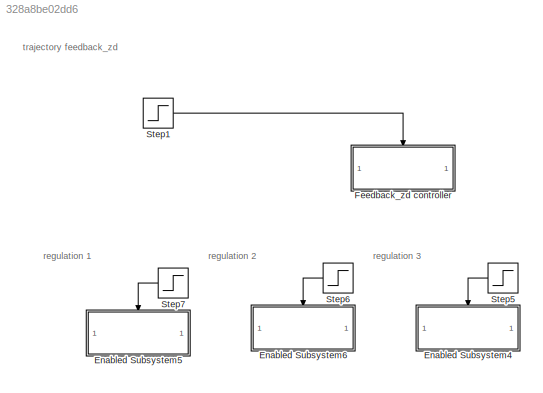
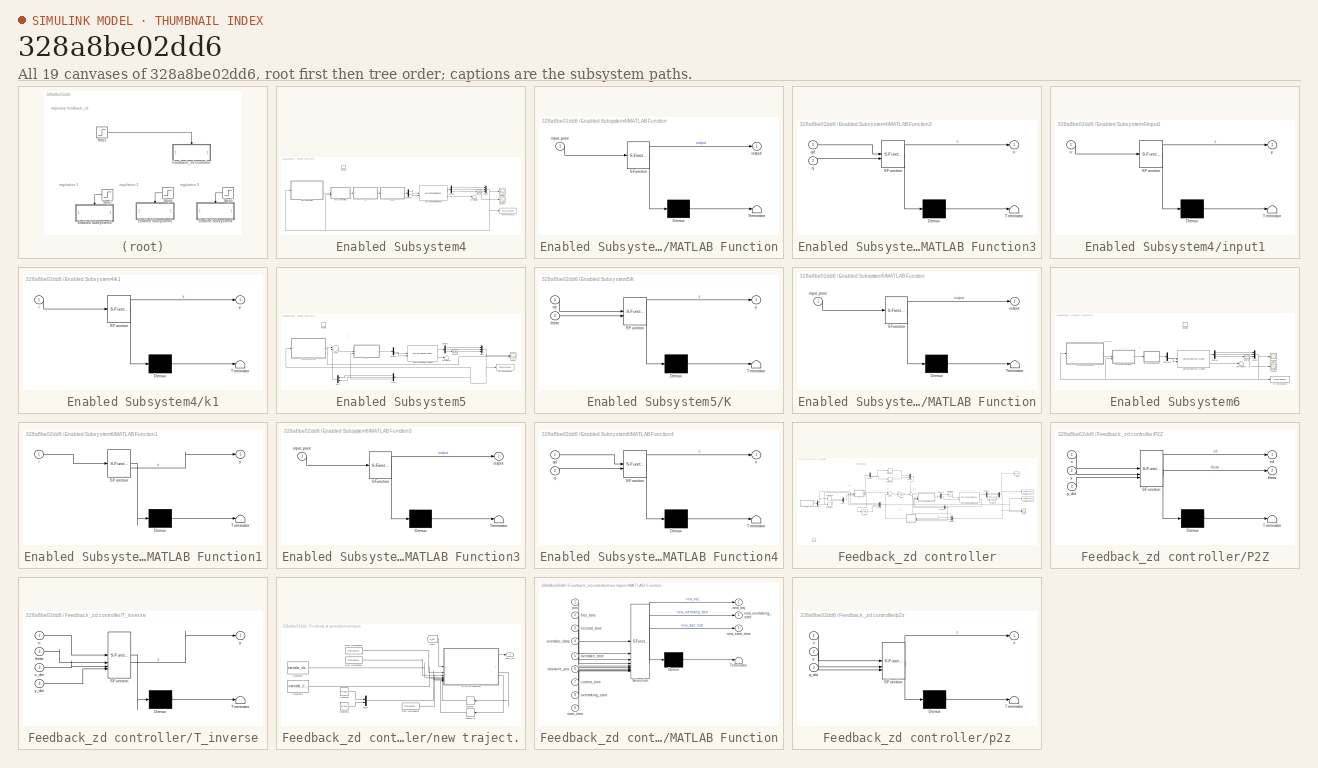
[diagram: thumbnail index - all 19 canvases of the model, root first then tree order]
MODEL slx_328a8be02dd6
KIND model
CONFIG AbsTol = auto
CONFIG EnableMultiTasking = off
CONFIG FixedStep = 0.001
CONFIG MaxStep = auto
CONFIG MinStep = auto
CONFIG RelTol = 10-8
CONFIG SampleTimeConstraint = Unconstrained
CONFIG SolverName = FixedStepAuto
CONFIG StartTime = 0.0
CONFIG StopTime = 15
WORKSPACE source: mxarray member
WORKSPACE kd1: Simulink.Parameter (value not decoded)
WORKSPACE kd2: Simulink.Parameter (value not decoded)
WORKSPACE kp1: Simulink.Parameter (value not decoded)
WORKSPACE kp2: Simulink.Parameter (value not decoded)
BLOCK [SubSystem] Enabled Subsystem4
  TreatAsAtomicUnit = on
BLOCK [Demux] Enabled Subsystem4/Demux
  Outputs = 3
BLOCK [Demux] Enabled Subsystem4/Demux5
  Outputs = 2
BLOCK [EnablePort] Enabled Subsystem4/Enable
BLOCK [SubSystem] Enabled Subsystem4/MATLAB Function
  ErrorFcn = Stateflow.Translate.translate
  PermitHierarchicalResolution = ExplicitOnly
  SFBlockType = MATLAB Function
  TreatAsAtomicUnit = on
BLOCK [Demux] Enabled Subsystem4/MATLAB Function/ Demux 
  Outputs = 1
BLOCK [S-Function] Enabled Subsystem4/MATLAB Function/ SFunction 
  EnableBusSupport = on
  FunctionName = sf_sfun
  PortCounts = [1 2]
  SFcnIsStateOwnerBlock = off
  SFunctionDeploymentMode = off
  Tag = Stateflow S-Function 4
BLOCK [Terminator] Enabled Subsystem4/MATLAB Function/ Terminator 
BLOCK [Inport] Enabled Subsystem4/MATLAB Function/input_pose
BLOCK [Outport] Enabled Subsystem4/MATLAB Function/output
BLOCK [SubSystem] Enabled Subsystem4/MATLAB Function3
  ErrorFcn = Stateflow.Translate.translate
  PermitHierarchicalResolution = ExplicitOnly
  SFBlockType = MATLAB Function
  TreatAsAtomicUnit = on
BLOCK [Demux] Enabled Subsystem4/MATLAB Function3/ Demux 
  Outputs = 1
BLOCK [S-Function] Enabled Subsystem4/MATLAB Function3/ SFunction 
  EnableBusSupport = on
  FunctionName = sf_sfun
  PortCounts = [2 2]
  SFcnIsStateOwnerBlock = off
  SFunctionDeploymentMode = off
  Tag = Stateflow S-Function 6
BLOCK [Terminator] Enabled Subsystem4/MATLAB Function3/ Terminator 
BLOCK [Outport] Enabled Subsystem4/MATLAB Function3/o
BLOCK [Inport] Enabled Subsystem4/MATLAB Function3/q
  Port = 2
BLOCK [Inport] Enabled Subsystem4/MATLAB Function3/qd
BLOCK [Mux] Enabled Subsystem4/Mux2
  DisplayOption = bar
  Inputs = 3
BLOCK [Scope] Enabled Subsystem4/Scope2
  Floating = off
  NumInputPorts = 1
  ScopeSpecificationString = Simulink.scopes.TimeScopeBlockCfg('CurrentConfiguration', extmgr.ConfigurationSet(extmgr.Configuration('Core','General UI',true),extmgr.Configuration('Core','Source UI',true),extmgr.Configuration('Sources','WiredSimulink',true,'DataLoggingVariableName','ScopeData4'),extmgr.Configuration('Visuals','Time Domain',true,'SerializedDisplays',{struct('MinYLimReal','-0.51276','MaxYLimReal','1.89269','YLab...<+1417ch>
BLOCK [Scope] Enabled Subsystem4/Scope4
  Floating = off
  NumInputPorts = 1
  ScopeSpecificationString = Simulink.scopes.TimeScopeBlockCfg('CurrentConfiguration', extmgr.ConfigurationSet(extmgr.Configuration('Core','General UI',true),extmgr.Configuration('Core','Source UI',true),extmgr.Configuration('Sources','WiredSimulink',true,'DataLoggingVariableName','ScopeData5'),extmgr.Configuration('Visuals','Time Domain',true,'SerializedDisplays',{struct('MinYLimReal','-18.75885','MaxYLimReal','168.82963','Y...<+1472ch>
BLOCK [Terminator] Enabled Subsystem4/Terminator
BLOCK [ToWorkspace] Enabled Subsystem4/To Workspace1
  FixptAsFi = on
  MaxDataPoints = inf
  SampleTime = 0.004
  SaveFormat = Structure With Time
  VariableName = uni_state1
BLOCK [Reference] Enabled Subsystem4/Unicycle Kinematic Model1  REF=robotmobilelib/Unicycle Kinematic Model
  SourceBlock = robotmobilelib/Unicycle Kinematic Model
  SourceType = Unicycle Kinematic Model
BLOCK [Reference] Enabled Subsystem4/Unwrap  REF=dspsigops/Unwrap
  SourceBlock = dspsigops/Unwrap
  SourceType = Unwrap
  UserDataPersistent = on
BLOCK [SubSystem] Enabled Subsystem4/input1
  ErrorFcn = Stateflow.Translate.translate
  PermitHierarchicalResolution = ExplicitOnly
  SFBlockType = MATLAB Function
  TreatAsAtomicUnit = on
BLOCK [Demux] Enabled Subsystem4/input1/ Demux 
  Outputs = 1
BLOCK [S-Function] Enabled Subsystem4/input1/ SFunction 
  EnableBusSupport = on
  FunctionName = sf_sfun
  PortCounts = [1 2]
  SFcnIsStateOwnerBlock = off
  SFunctionDeploymentMode = off
  Tag = Stateflow S-Function 7
BLOCK [Terminator] Enabled Subsystem4/input1/ Terminator 
BLOCK [Inport] Enabled Subsystem4/input1/u
BLOCK [Outport] Enabled Subsystem4/input1/y
BLOCK [SubSystem] Enabled Subsystem4/k1
  ErrorFcn = Stateflow.Translate.translate
  PermitHierarchicalResolution = ExplicitOnly
  SFBlockType = MATLAB Function
  TreatAsAtomicUnit = on
BLOCK [Demux] Enabled Subsystem4/k1/ Demux 
  Outputs = 1
BLOCK [S-Function] Enabled Subsystem4/k1/ SFunction 
  EnableBusSupport = on
  FunctionName = sf_sfun
  PortCounts = [1 2]
  SFcnIsStateOwnerBlock = off
  SFunctionDeploymentMode = off
  Tag = Stateflow S-Function 16
BLOCK [Terminator] Enabled Subsystem4/k1/ Terminator 
BLOCK [Inport] Enabled Subsystem4/k1/i
BLOCK [Outport] Enabled Subsystem4/k1/y
BLOCK [SubSystem] Enabled Subsystem5
  Commented = on
  TreatAsAtomicUnit = on
BLOCK [Demux] Enabled Subsystem5/Demux
  NameLocation = top
  Outputs = 3
BLOCK [Demux] Enabled Subsystem5/Demux2
  Outputs = 2
BLOCK [Demux] Enabled Subsystem5/Demux4
  Outputs = 3
BLOCK [EnablePort] Enabled Subsystem5/Enable
BLOCK [SubSystem] Enabled Subsystem5/K
  ErrorFcn = Stateflow.Translate.translate
  PermitHierarchicalResolution = ExplicitOnly
  SFBlockType = MATLAB Function
  TreatAsAtomicUnit = on
BLOCK [Demux] Enabled Subsystem5/K/ Demux 
  Outputs = 1
BLOCK [S-Function] Enabled Subsystem5/K/ SFunction 
  EnableBusSupport = on
  FunctionName = sf_sfun
  PortCounts = [2 2]
  SFcnIsStateOwnerBlock = off
  SFunctionDeploymentMode = off
  Tag = Stateflow S-Function 19
BLOCK [Terminator] Enabled Subsystem5/K/ Terminator 
BLOCK [Inport] Enabled Subsystem5/K/ep
BLOCK [Inport] Enabled Subsystem5/K/theta
  Port = 2
BLOCK [Outport] Enabled Subsystem5/K/y
BLOCK [SubSystem] Enabled Subsystem5/MATLAB Function
  ErrorFcn = Stateflow.Translate.translate
  PermitHierarchicalResolution = ExplicitOnly
  SFBlockType = MATLAB Function
  TreatAsAtomicUnit = on
BLOCK [Demux] Enabled Subsystem5/MATLAB Function/ Demux 
  Outputs = 1
BLOCK [S-Function] Enabled Subsystem5/MATLAB Function/ SFunction 
  EnableBusSupport = on
  FunctionName = sf_sfun
  PortCounts = [1 2]
  SFcnIsStateOwnerBlock = off
  SFunctionDeploymentMode = off
  Tag = Stateflow S-Function 23
BLOCK [Terminator] Enabled Subsystem5/MATLAB Function/ Terminator 
BLOCK [Inport] Enabled Subsystem5/MATLAB Function/input_pose
BLOCK [Outport] Enabled Subsystem5/MATLAB Function/output
BLOCK [Mux] Enabled Subsystem5/Mux
  DisplayOption = bar
  Inputs = 3
BLOCK [Mux] Enabled Subsystem5/Mux1
  DisplayOption = bar
  Inputs = 2
  NameLocation = top
BLOCK [Scope] Enabled Subsystem5/Scope
  Floating = off
  NumInputPorts = 2
  ScopeSpecificationString = Simulink.scopes.TimeScopeBlockCfg('CurrentConfiguration', extmgr.ConfigurationSet(extmgr.Configuration('Core','General UI',true),extmgr.Configuration('Core','Source UI',true),extmgr.Configuration('Sources','WiredSimulink',true,'DataLoggingVariableName','ScopeData1'),extmgr.Configuration('Visuals','Time Domain',true,'SerializedDisplays',{struct('MinYLimReal','-35.55536','MaxYLimReal','319.99823','Y...<+1510ch>
BLOCK [Sum] Enabled Subsystem5/Sum2
  Inputs = ||+-|
BLOCK [Terminator] Enabled Subsystem5/Terminator
BLOCK [ToWorkspace] Enabled Subsystem5/To Workspace1
  FixptAsFi = on
  MaxDataPoints = inf
  SampleTime = 0.001
  SaveFormat = Structure With Time
  VariableName = uni_state1
BLOCK [Reference] Enabled Subsystem5/Unicycle Kinematic Model1  REF=robotmobilelib/Unicycle Kinematic Model
  SourceBlock = robotmobilelib/Unicycle Kinematic Model
  SourceType = Unicycle Kinematic Model
BLOCK [Reference] Enabled Subsystem5/Unwrap  REF=dspsigops/Unwrap
  SourceBlock = dspsigops/Unwrap
  SourceType = Unwrap
  UserDataPersistent = on
BLOCK [SubSystem] Enabled Subsystem6
  Commented = on
  TreatAsAtomicUnit = on
BLOCK [Demux] Enabled Subsystem6/Demux
  Outputs = 3
BLOCK [Demux] Enabled Subsystem6/Demux5
  Outputs = 2
BLOCK [EnablePort] Enabled Subsystem6/Enable
BLOCK [SubSystem] Enabled Subsystem6/MATLAB Function1
  ErrorFcn = Stateflow.Translate.translate
  PermitHierarchicalResolution = ExplicitOnly
  SFBlockType = MATLAB Function
  TreatAsAtomicUnit = on
BLOCK [Demux] Enabled Subsystem6/MATLAB Function1/ Demux 
  Outputs = 1
BLOCK [S-Function] Enabled Subsystem6/MATLAB Function1/ SFunction 
  EnableBusSupport = on
  FunctionName = sf_sfun
  PortCounts = [1 2]
  SFcnIsStateOwnerBlock = off
  SFunctionDeploymentMode = off
  Tag = Stateflow S-Function 24
BLOCK [Terminator] Enabled Subsystem6/MATLAB Function1/ Terminator 
BLOCK [Inport] Enabled Subsystem6/MATLAB Function1/i
BLOCK [Outport] Enabled Subsystem6/MATLAB Function1/y
BLOCK [SubSystem] Enabled Subsystem6/MATLAB Function3
  ErrorFcn = Stateflow.Translate.translate
  PermitHierarchicalResolution = ExplicitOnly
  SFBlockType = MATLAB Function
  TreatAsAtomicUnit = on
BLOCK [Demux] Enabled Subsystem6/MATLAB Function3/ Demux 
  Outputs = 1
BLOCK [S-Function] Enabled Subsystem6/MATLAB Function3/ SFunction 
  EnableBusSupport = on
  FunctionName = sf_sfun
  PortCounts = [1 2]
  SFcnIsStateOwnerBlock = off
  SFunctionDeploymentMode = off
  Tag = Stateflow S-Function 25
BLOCK [Terminator] Enabled Subsystem6/MATLAB Function3/ Terminator 
BLOCK [Inport] Enabled Subsystem6/MATLAB Function3/input_pose
BLOCK [Outport] Enabled Subsystem6/MATLAB Function3/output
BLOCK [SubSystem] Enabled Subsystem6/MATLAB Function4
  ErrorFcn = Stateflow.Translate.translate
  PermitHierarchicalResolution = ExplicitOnly
  SFBlockType = MATLAB Function
  TreatAsAtomicUnit = on
BLOCK [Demux] Enabled Subsystem6/MATLAB Function4/ Demux 
  Outputs = 1
BLOCK [S-Function] Enabled Subsystem6/MATLAB Function4/ SFunction 
  EnableBusSupport = on
  FunctionName = sf_sfun
  PortCounts = [2 2]
  SFcnIsStateOwnerBlock = off
  SFunctionDeploymentMode = off
  Tag = Stateflow S-Function 26
BLOCK [Terminator] Enabled Subsystem6/MATLAB Function4/ Terminator 
BLOCK [Outport] Enabled Subsystem6/MATLAB Function4/o
BLOCK [Inport] Enabled Subsystem6/MATLAB Function4/q
  Port = 2
BLOCK [Inport] Enabled Subsystem6/MATLAB Function4/qd
BLOCK [Mux] Enabled Subsystem6/Mux2
  DisplayOption = bar
  Inputs = 3
BLOCK [Scope] Enabled Subsystem6/Scope1
  Floating = off
  NumInputPorts = 1
  ScopeSpecificationString = Simulink.scopes.TimeScopeBlockCfg('CurrentConfiguration', extmgr.ConfigurationSet(extmgr.Configuration('Core','General UI',true),extmgr.Configuration('Core','Source UI',true),extmgr.Configuration('Sources','WiredSimulink',true,'DataLoggingVariableName','ScopeData2'),extmgr.Configuration('Visuals','Time Domain',true,'SerializedDisplays',{struct('MinYLimReal','-0.50543','MaxYLimReal','2.27484','YLab...<+1417ch>
BLOCK [Scope] Enabled Subsystem6/Scope4
  Floating = off
  NumInputPorts = 1
  ScopeSpecificationString = Simulink.scopes.TimeScopeBlockCfg('CurrentConfiguration', extmgr.ConfigurationSet(extmgr.Configuration('Core','General UI',true),extmgr.Configuration('Core','Source UI',true),extmgr.Configuration('Sources','WiredSimulink',true,'DataLoggingVariableName','ScopeData3'),extmgr.Configuration('Visuals','Time Domain',true,'SerializedDisplays',{struct('MinYLimReal','-35.59535','MaxYLimReal','315.06615','Y...<+1472ch>
BLOCK [Terminator] Enabled Subsystem6/Terminator
BLOCK [ToWorkspace] Enabled Subsystem6/To Workspace2
  FixptAsFi = on
  MaxDataPoints = inf
  SampleTime = 0.001
  SaveFormat = Structure With Time
  VariableName = uni_state1
BLOCK [Reference] Enabled Subsystem6/Unicycle Kinematic Model2  REF=robotmobilelib/Unicycle Kinematic Model
  SourceBlock = robotmobilelib/Unicycle Kinematic Model
  SourceType = Unicycle Kinematic Model
BLOCK [Reference] Enabled Subsystem6/Unwrap  REF=dspsigops/Unwrap
  SourceBlock = dspsigops/Unwrap
  SourceType = Unwrap
  UserDataPersistent = on
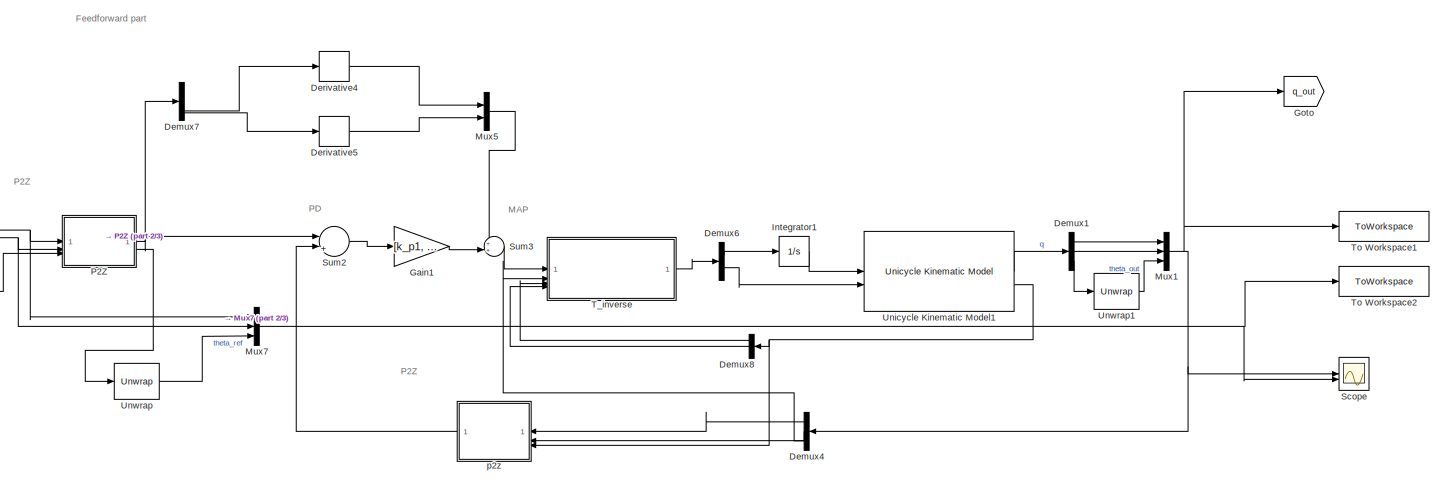
[diagram: Feedback_zd controller - part 1/3, most of the canvas]
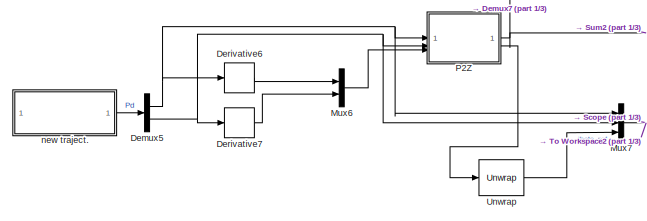
[diagram: Feedback_zd controller - part 2/3, middle left region]
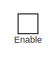
[diagram: Feedback_zd controller - part 3/3, bottom left region]
BLOCK [SubSystem] Feedback_zd controller
  TreatAsAtomicUnit = on
BLOCK [Demux] Feedback_zd controller/Demux1
  Outputs = 3
BLOCK [Demux] Feedback_zd controller/Demux4
  NameLocation = top
  Outputs = 3
BLOCK [Demux] Feedback_zd controller/Demux5
  Outputs = 2
BLOCK [Demux] Feedback_zd controller/Demux6
  Outputs = 2
BLOCK [Demux] Feedback_zd controller/Demux7
BLOCK [Demux] Feedback_zd controller/Demux8
  NameLocation = top
  Outputs = 3
BLOCK [Derivative] Feedback_zd controller/Derivative4
BLOCK [Derivative] Feedback_zd controller/Derivative5
BLOCK [Derivative] Feedback_zd controller/Derivative6
BLOCK [Derivative] Feedback_zd controller/Derivative7
BLOCK [EnablePort] Feedback_zd controller/Enable
BLOCK [Gain] Feedback_zd controller/Gain1
  Gain = [k_p1, 0, k_d1, 0; 0, k_p2, 0, k_d2]
  Multiplication = Matrix(K*u) (u vector)
BLOCK [Goto] Feedback_zd controller/Goto
  GotoTag = q_out
  TagVisibility = global
BLOCK [Integrator] Feedback_zd controller/Integrator1
BLOCK [Mux] Feedback_zd controller/Mux1
  DisplayOption = bar
  Inputs = 3
BLOCK [Mux] Feedback_zd controller/Mux5
  DisplayOption = bar
  Inputs = 2
BLOCK [Mux] Feedback_zd controller/Mux6
  DisplayOption = bar
  Inputs = 2
BLOCK [Mux] Feedback_zd controller/Mux7
  DisplayOption = bar
  Inputs = 3
BLOCK [SubSystem] Feedback_zd controller/P2Z
  ErrorFcn = Stateflow.Translate.translate
  PermitHierarchicalResolution = ExplicitOnly
  SFBlockType = MATLAB Function
  TreatAsAtomicUnit = on
BLOCK [Demux] Feedback_zd controller/P2Z/ Demux 
  Outputs = 1
BLOCK [S-Function] Feedback_zd controller/P2Z/ SFunction 
  EnableBusSupport = on
  FunctionName = sf_sfun
  PortCounts = [3 3]
  SFcnIsStateOwnerBlock = off
  SFunctionDeploymentMode = off
  Tag = Stateflow S-Function 22
BLOCK [Terminator] Feedback_zd controller/P2Z/ Terminator 
BLOCK [Inport] Feedback_zd controller/P2Z/p_dot
  Port = 3
BLOCK [Outport] Feedback_zd controller/P2Z/theta
  Port = 2
BLOCK [Inport] Feedback_zd controller/P2Z/x
BLOCK [Inport] Feedback_zd controller/P2Z/y
  Port = 2
BLOCK [Outport] Feedback_zd controller/P2Z/zd
BLOCK [Scope] Feedback_zd controller/Scope
  Floating = off
  NumInputPorts = 2
  ScopeSpecificationString = Simulink.scopes.TimeScopeBlockCfg('CurrentConfiguration', extmgr.ConfigurationSet(extmgr.Configuration('Core','General UI',true),extmgr.Configuration('Core','Source UI',true),extmgr.Configuration('Sources','WiredSimulink',true,'DataLoggingVariableName','ScopeData1','SampleTime','0.01'),extmgr.Configuration('Visuals','Time Domain',true,'SerializedDisplays',{struct('MinYLimReal','-71.20329','MaxYLim...<+1533ch>
BLOCK [Sum] Feedback_zd controller/Sum2
  Inputs = ||+-|
BLOCK [Sum] Feedback_zd controller/Sum3
  Inputs = ++|
BLOCK [SubSystem] Feedback_zd controller/T_inverse
  ErrorFcn = Stateflow.Translate.translate
  PermitHierarchicalResolution = ExplicitOnly
  SFBlockType = MATLAB Function
  TreatAsAtomicUnit = on
BLOCK [Demux] Feedback_zd controller/T_inverse/ Demux 
  Outputs = 1
BLOCK [S-Function] Feedback_zd controller/T_inverse/ SFunction 
  EnableBusSupport = on
  FunctionName = sf_sfun
  PortCounts = [4 2]
  SFcnIsStateOwnerBlock = off
  SFunctionDeploymentMode = off
  Tag = Stateflow S-Function 20
BLOCK [Terminator] Feedback_zd controller/T_inverse/ Terminator 
BLOCK [Inport] Feedback_zd controller/T_inverse/theta
  Port = 2
BLOCK [Inport] Feedback_zd controller/T_inverse/u
BLOCK [Inport] Feedback_zd controller/T_inverse/x_dot
  Port = 3
BLOCK [Outport] Feedback_zd controller/T_inverse/y
BLOCK [Inport] Feedback_zd controller/T_inverse/y_dot
  Port = 4
BLOCK [ToWorkspace] Feedback_zd controller/To Workspace1
  FixptAsFi = on
  MaxDataPoints = inf
  SampleTime = 0.01
  SaveFormat = Structure With Time
  VariableName = uni_state
BLOCK [ToWorkspace] Feedback_zd controller/To Workspace2
  Commented = on
  FixptAsFi = on
  MaxDataPoints = inf
  SampleTime = 0.01
  SaveFormat = Structure With Time
  VariableName = reference
BLOCK [Reference] Feedback_zd controller/Unicycle Kinematic Model1  REF=robotmobilelib/Unicycle Kinematic Model
  SourceBlock = robotmobilelib/Unicycle Kinematic Model
  SourceType = Unicycle Kinematic Model
BLOCK [Reference] Feedback_zd controller/Unwrap  REF=dspsigops/Unwrap
  SourceBlock = dspsigops/Unwrap
  SourceType = Unwrap
  UserDataPersistent = on
BLOCK [Reference] Feedback_zd controller/Unwrap1  REF=dspsigops/Unwrap
  SourceBlock = dspsigops/Unwrap
  SourceType = Unwrap
  UserDataPersistent = on
BLOCK [SubSystem] Feedback_zd controller/new traject.
BLOCK [Constant] Feedback_zd controller/new traject./Constant
  Value = obstacle_x
BLOCK [Constant] Feedback_zd controller/new traject./Constant1
  Value = obstacle_y
BLOCK [Constant] Feedback_zd controller/new traject./Constant2
  Value = overtake_data
BLOCK [Constant] Feedback_zd controller/new traject./Constant3
  Value = overtake_time
BLOCK [From] Feedback_zd controller/new traject./From
  GotoTag = q_out
  TagVisibility = global
BLOCK [FromWorkspace] Feedback_zd controller/new traject./From Workspace1
  VariableName = second_lane
BLOCK [FromWorkspace] Feedback_zd controller/new traject./From Workspace2
  VariableName = ref_data
BLOCK [FromWorkspace] Feedback_zd controller/new traject./From Workspace3
  VariableName = current_time
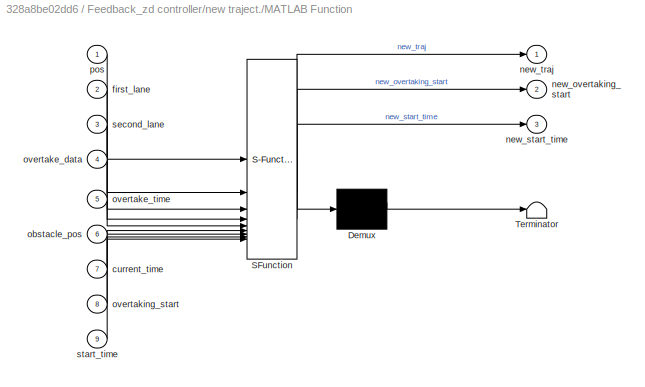
BLOCK [SubSystem] Feedback_zd controller/new traject./MATLAB Function
  ErrorFcn = Stateflow.Translate.translate
  LibrarySourceBlock = simulink/User-Defined\nFunctions/MATLAB Function
  PermitHierarchicalResolution = ExplicitOnly
  SFBlockType = MATLAB Function
  TreatAsAtomicUnit = on
BLOCK [Demux] Feedback_zd controller/new traject./MATLAB Function/ Demux 
  Outputs = 1
BLOCK [S-Function] Feedback_zd controller/new traject./MATLAB Function/ SFunction 
  EnableBusSupport = on
  FunctionName = sf_sfun
  PortCounts = [9 4]
  SFcnIsStateOwnerBlock = off
  SFunctionDeploymentMode = off
  Tag = Stateflow S-Function 5
BLOCK [Terminator] Feedback_zd controller/new traject./MATLAB Function/ Terminator 
BLOCK [Inport] Feedback_zd controller/new traject./MATLAB Function/current_time
  Port = 7
BLOCK [Inport] Feedback_zd controller/new traject./MATLAB Function/first_lane
  Port = 2
BLOCK [Outport] Feedback_zd controller/new traject./MATLAB Function/new_overtaking_start
  Port = 2
BLOCK [Outport] Feedback_zd controller/new traject./MATLAB Function/new_start_time
  Port = 3
BLOCK [Outport] Feedback_zd controller/new traject./MATLAB Function/new_traj
BLOCK [Inport] Feedback_zd controller/new traject./MATLAB Function/obstacle_pos
  Port = 6
BLOCK [Inport] Feedback_zd controller/new traject./MATLAB Function/overtake_data
  Port = 4
BLOCK [Inport] Feedback_zd controller/new traject./MATLAB Function/overtake_time
  Port = 5
BLOCK [Inport] Feedback_zd controller/new traject./MATLAB Function/overtaking_start
  Port = 8
BLOCK [Inport] Feedback_zd controller/new traject./MATLAB Function/pos
BLOCK [Inport] Feedback_zd controller/new traject./MATLAB Function/second_lane
  Port = 3
BLOCK [Inport] Feedback_zd controller/new traject./MATLAB Function/start_time
  Port = 9
BLOCK [Memory] Feedback_zd controller/new traject./Memory
  NameLocation = top
BLOCK [Memory] Feedback_zd controller/new traject./Memory2
  NameLocation = top
BLOCK [Mux] Feedback_zd controller/new traject./Mux4
  DisplayOption = bar
  Inputs = 2
BLOCK [Outport] Feedback_zd controller/new traject./new_traj
BLOCK [SubSystem] Feedback_zd controller/p2z
  ErrorFcn = Stateflow.Translate.translate
  NameLocation = top
  PermitHierarchicalResolution = ExplicitOnly
  SFBlockType = MATLAB Function
  TreatAsAtomicUnit = on
BLOCK [Demux] Feedback_zd controller/p2z/ Demux 
  Outputs = 1
BLOCK [S-Function] Feedback_zd controller/p2z/ SFunction 
  EnableBusSupport = on
  FunctionName = sf_sfun
  PortCounts = [3 2]
  SFcnIsStateOwnerBlock = off
  SFunctionDeploymentMode = off
  Tag = Stateflow S-Function 21
BLOCK [Terminator] Feedback_zd controller/p2z/ Terminator 
BLOCK [Inport] Feedback_zd controller/p2z/q_dot
  Port = 3
BLOCK [Inport] Feedback_zd controller/p2z/x
BLOCK [Inport] Feedback_zd controller/p2z/y
  Port = 2
BLOCK [Outport] Feedback_zd controller/p2z/z
BLOCK [Step] Step1
  After = 0
  Before = 1
  SampleTime = 0
  Time = 10
BLOCK [Step] Step5
  SampleTime = 0
  Time = 10
BLOCK [Step] Step6
  Commented = on
  SampleTime = 0
  Time = 10
BLOCK [Step] Step7
  Commented = on
  SampleTime = 0
  Time = 10
ANNOTATION (root): regulation 1
ANNOTATION (root): regulation 2
ANNOTATION (root): regulation 3
ANNOTATION (root): trajectory feedback_zd
ANNOTATION Enabled Subsystem5: K
ANNOTATION Enabled Subsystem6: K
ANNOTATION Enabled Subsystem6: STATE TF
ANNOTATION Feedback_zd controller: MAP
ANNOTATION Feedback_zd controller: PD
ANNOTATION Feedback_zd controller: Feedforward part
ANNOTATION Feedback_zd controller: P2Z
LINE Enabled Subsystem4/Demux5:1 -> Enabled Subsystem4/Unicycle Kinematic Model1:1
LINE Enabled Subsystem4/Demux5:2 -> Enabled Subsystem4/Unicycle Kinematic Model1:2
LINE Enabled Subsystem4/Demux:1 -> Enabled Subsystem4/Mux2:1
LINE Enabled Subsystem4/Demux:2 -> Enabled Subsystem4/Mux2:2
LINE Enabled Subsystem4/Demux:3 -> Enabled Subsystem4/Unwrap:1
LINE Enabled Subsystem4/MATLAB Function3:1 -> Enabled Subsystem4/k1:1
LINE Enabled Subsystem4/MATLAB Function:1 -> Enabled Subsystem4/MATLAB Function3:1
NET Enabled Subsystem4/Mux2:1 -> Enabled Subsystem4/MATLAB Function3:2, Enabled Subsystem4/MATLAB Function:1, Enabled Subsystem4/Scope4:1, Enabled Subsystem4/To Workspace1:1
LINE Enabled Subsystem4/Unicycle Kinematic Model1:1 -> Enabled Subsystem4/Demux:1
LINE Enabled Subsystem4/Unicycle Kinematic Model1:2 -> Enabled Subsystem4/Terminator:1
NET Enabled Subsystem4/Unwrap:1 -> Enabled Subsystem4/Mux2:3, Enabled Subsystem4/Scope2:1
LINE Enabled Subsystem4/input1:1 -> Enabled Subsystem4/Demux5:1
LINE Enabled Subsystem4/k1:1 -> Enabled Subsystem4/input1:1
LINE Enabled Subsystem5/Demux2:1 -> Enabled Subsystem5/Unicycle Kinematic Model1:1
LINE Enabled Subsystem5/Demux2:2 -> Enabled Subsystem5/Unicycle Kinematic Model1:2
LINE Enabled Subsystem5/Demux4:1 -> Enabled Subsystem5/Mux:1
LINE Enabled Subsystem5/Demux4:2 -> Enabled Subsystem5/Mux:2
LINE Enabled Subsystem5/Demux4:3 -> Enabled Subsystem5/Unwrap:1
LINE Enabled Subsystem5/Demux:1 -> Enabled Subsystem5/Mux1:1
LINE Enabled Subsystem5/Demux:2 -> Enabled Subsystem5/Mux1:2
LINE Enabled Subsystem5/Demux:3 -> Enabled Subsystem5/K:2
LINE Enabled Subsystem5/K:1 -> Enabled Subsystem5/Demux2:1
NET Enabled Subsystem5/MATLAB Function:1 -> Enabled Subsystem5/Scope:2, Enabled Subsystem5/Sum2:1
LINE Enabled Subsystem5/Mux1:1 -> Enabled Subsystem5/Sum2:2
NET Enabled Subsystem5/Mux:1 -> Enabled Subsystem5/Demux:1, Enabled Subsystem5/MATLAB Function:1, Enabled Subsystem5/Scope:1, Enabled Subsystem5/To Workspace1:1
LINE Enabled Subsystem5/Sum2:1 -> Enabled Subsystem5/K:1
LINE Enabled Subsystem5/Unicycle Kinematic Model1:1 -> Enabled Subsystem5/Demux4:1
LINE Enabled Subsystem5/Unicycle Kinematic Model1:2 -> Enabled Subsystem5/Terminator:1
LINE Enabled Subsystem5/Unwrap:1 -> Enabled Subsystem5/Mux:3
LINE Enabled Subsystem6/Demux5:1 -> Enabled Subsystem6/Unicycle Kinematic Model2:1
LINE Enabled Subsystem6/Demux5:2 -> Enabled Subsystem6/Unicycle Kinematic Model2:2
LINE Enabled Subsystem6/Demux:1 -> Enabled Subsystem6/Mux2:1
LINE Enabled Subsystem6/Demux:2 -> Enabled Subsystem6/Mux2:2
LINE Enabled Subsystem6/Demux:3 -> Enabled Subsystem6/Unwrap:1
LINE Enabled Subsystem6/MATLAB Function1:1 -> Enabled Subsystem6/Demux5:1
LINE Enabled Subsystem6/MATLAB Function3:1 -> Enabled Subsystem6/MATLAB Function4:1
LINE Enabled Subsystem6/MATLAB Function4:1 -> Enabled Subsystem6/MATLAB Function1:1
NET Enabled Subsystem6/Mux2:1 -> Enabled Subsystem6/MATLAB Function3:1, Enabled Subsystem6/MATLAB Function4:2, Enabled Subsystem6/Scope4:1, Enabled Subsystem6/To Workspace2:1
LINE Enabled Subsystem6/Unicycle Kinematic Model2:1 -> Enabled Subsystem6/Demux:1
LINE Enabled Subsystem6/Unicycle Kinematic Model2:2 -> Enabled Subsystem6/Terminator:1
NET Enabled Subsystem6/Unwrap:1 -> Enabled Subsystem6/Mux2:3, Enabled Subsystem6/Scope1:1
LINE Feedback_zd controller/Demux1:1 -> Feedback_zd controller/Mux1:1
LINE Feedback_zd controller/Demux1:2 -> Feedback_zd controller/Mux1:2
LINE Feedback_zd controller/Demux1:3 -> Feedback_zd controller/Unwrap1:1
LINE Feedback_zd controller/Demux4:1 -> Feedback_zd controller/p2z:1
LINE Feedback_zd controller/Demux4:2 -> Feedback_zd controller/p2z:2
LINE Feedback_zd controller/Demux4:3 -> Feedback_zd controller/T_inverse:2
NET Feedback_zd controller/Demux5:1 -> Feedback_zd controller/Derivative6:1, Feedback_zd controller/Mux7:1, Feedback_zd controller/P2Z:1
NET Feedback_zd controller/Demux5:2 -> Feedback_zd controller/Derivative7:1, Feedback_zd controller/Mux7:2, Feedback_zd controller/P2Z:2
LINE Feedback_zd controller/Demux6:1 -> Feedback_zd controller/Integrator1:1
LINE Feedback_zd controller/Demux6:2 -> Feedback_zd controller/Unicycle Kinematic Model1:2
LINE Feedback_zd controller/Demux7:3 -> Feedback_zd controller/Derivative4:1
LINE Feedback_zd controller/Demux7:4 -> Feedback_zd controller/Derivative5:1
LINE Feedback_zd controller/Demux8:1 -> Feedback_zd controller/T_inverse:3
LINE Feedback_zd controller/Demux8:2 -> Feedback_zd controller/T_inverse:4
LINE Feedback_zd controller/Derivative4:1 -> Feedback_zd controller/Mux5:1
LINE Feedback_zd controller/Derivative5:1 -> Feedback_zd controller/Mux5:2
LINE Feedback_zd controller/Derivative6:1 -> Feedback_zd controller/Mux6:1
LINE Feedback_zd controller/Derivative7:1 -> Feedback_zd controller/Mux6:2
LINE Feedback_zd controller/Gain1:1 -> Feedback_zd controller/Sum3:2
LINE Feedback_zd controller/Integrator1:1 -> Feedback_zd controller/Unicycle Kinematic Model1:1
NET Feedback_zd controller/Mux1:1 -> Feedback_zd controller/Demux4:1, Feedback_zd controller/Goto:1, Feedback_zd controller/Scope:1, Feedback_zd controller/To Workspace1:1
LINE Feedback_zd controller/Mux5:1 -> Feedback_zd controller/Sum3:1
LINE Feedback_zd controller/Mux6:1 -> Feedback_zd controller/P2Z:3
NET Feedback_zd controller/Mux7:1 -> Feedback_zd controller/Scope:2, Feedback_zd controller/To Workspace2:1
NET Feedback_zd controller/P2Z:1 -> Feedback_zd controller/Demux7:1, Feedback_zd controller/Sum2:1
LINE Feedback_zd controller/P2Z:2 -> Feedback_zd controller/Unwrap:1
LINE Feedback_zd controller/Sum2:1 -> Feedback_zd controller/Gain1:1
LINE Feedback_zd controller/Sum3:1 -> Feedback_zd controller/T_inverse:1
LINE Feedback_zd controller/T_inverse:1 -> Feedback_zd controller/Demux6:1
LINE Feedback_zd controller/Unicycle Kinematic Model1:1 -> Feedback_zd controller/Demux1:1
NET Feedback_zd controller/Unicycle Kinematic Model1:2 -> Feedback_zd controller/Demux8:1, Feedback_zd controller/p2z:3
LINE Feedback_zd controller/Unwrap1:1 -> Feedback_zd controller/Mux1:3
LINE Feedback_zd controller/Unwrap:1 -> Feedback_zd controller/Mux7:3
LINE Feedback_zd controller/new traject./Constant1:1 -> Feedback_zd controller/new traject./Mux4:2
LINE Feedback_zd controller/new traject./Constant2:1 -> Feedback_zd controller/new traject./MATLAB Function:4
LINE Feedback_zd controller/new traject./Constant3:1 -> Feedback_zd controller/new traject./MATLAB Function:5
LINE Feedback_zd controller/new traject./Constant:1 -> Feedback_zd controller/new traject./Mux4:1
LINE Feedback_zd controller/new traject./From Workspace1:1 -> Feedback_zd controller/new traject./MATLAB Function:3
LINE Feedback_zd controller/new traject./From Workspace2:1 -> Feedback_zd controller/new traject./MATLAB Function:2
LINE Feedback_zd controller/new traject./From Workspace3:1 -> Feedback_zd controller/new traject./MATLAB Function:7
LINE Feedback_zd controller/new traject./From:1 -> Feedback_zd controller/new traject./MATLAB Function:1
LINE Feedback_zd controller/new traject./MATLAB Function:1 -> Feedback_zd controller/new traject./new_traj:1
LINE Feedback_zd controller/new traject./MATLAB Function:2 -> Feedback_zd controller/new traject./Memory:1
LINE Feedback_zd controller/new traject./MATLAB Function:3 -> Feedback_zd controller/new traject./Memory2:1
LINE Feedback_zd controller/new traject./Memory2:1 -> Feedback_zd controller/new traject./MATLAB Function:9
LINE Feedback_zd controller/new traject./Memory:1 -> Feedback_zd controller/new traject./MATLAB Function:8
LINE Feedback_zd controller/new traject./Mux4:1 -> Feedback_zd controller/new traject./MATLAB Function:6
LINE Feedback_zd controller/new traject.:1 -> Feedback_zd controller/Demux5:1
LINE Feedback_zd controller/p2z:1 -> Feedback_zd controller/Sum2:2
LINE Step1:1 -> Feedback_zd controller:enable
LINE Step5:1 -> Enabled Subsystem4:enable
LINE Step6:1 -> Enabled Subsystem6:enable
LINE Step7:1 -> Enabled Subsystem5:enable
note: NET lines group one-source signal fan-out (src -> all destinations, sorted); 1:1 wires keep LINE
CHART Enabled
Subsystem5/MATLAB Function states=1 transitions=1
  STATE_LABEL 'eML_blk_kernel()'
  STATE_LABEL 'SCRIPT:\nfunction output = check_and_update(input_pose)\n    % Input:\n    %   input_pose - a vector [x; y; theta]\n    % Output:\n    %   output - a vector [x_out; y_out]\n\n    % Define the target coordinates\n   \n    persistent target_y; % Define target_y as persistent so it can retain its value\n    persistent has_updated; % Flag to track if the update has already occurred\n    persistent target_x;\n    ...<+718ch>'
CHART Enabled
Subsystem6/MATLAB Function1 states=1 transitions=1
  STATE_LABEL 'eML_blk_kernel()'
  STATE_LABEL 'SCRIPT:\nfunction y = fcn(i)\nk1=20;\nk2=30;\nk3=4;\nrho=i(1);\ngamma=i(2);\ndelta=i(3);\nv=k1*rho*cos(gamma);\nw=k2*gamma+(k1* ((sin(gamma)*cos(gamma))/gamma) * (gamma+k3*delta));\ny = [v;w];\n'
CHART Enabled
Subsystem6/MATLAB Function3 states=1 transitions=1
  STATE_LABEL 'eML_blk_kernel()'
  STATE_LABEL 'SCRIPT:\nfunction output = check_and_update(input_pose)\n    % Input:\n    %   input_pose - a vector [x; y; theta]\n    % Output:\n    %   output - a vector [x_out; y_out]\n\n    % Define the target coordinates\n   \n    persistent target_y; % Define target_y as persistent so it can retain its value\n    persistent has_updated; % Flag to track if the update has already occurred\n    persistent target_x;\n    ...<+952ch>'
CHART Enabled
Subsystem6/MATLAB Function4 states=1 transitions=1
  STATE_LABEL 'eML_blk_kernel()'
  STATE_LABEL "SCRIPT:\nfunction o = fcn(qd,q)\n    xi=q(1);\n    yi=q(2);\n    thetai=q(3);\n\n    R = [cos(qd(3)), sin(qd(3));\n        -sin(qd(3)), cos(qd(3))];\n    \n\n    x = (xi - qd(1));\n    y = (yi - qd(2));\n    theta = (thetai - qd(3));\n\n    xy_new = (R * [x; y])';\n    x = xy_new(1);\n    y = xy_new(2);\n\n\n    theta=mod(theta+pi,2*pi)-pi;\n\n    rho=sqrt(x^2+y^2);\n    gamma=atan2(y,x)+pi-theta;\n    delta=gamma+theta...<+97ch>"
CHART Enabled
Subsystem4/MATLAB Function states=1 transitions=1
  STATE_LABEL 'eML_blk_kernel()'
  STATE_LABEL 'SCRIPT:\nfunction output = check_and_update(input_pose)\n    % Input:\n    %   input_pose - a vector [x; y; theta]\n    % Output:\n    %   output - a vector [x_out; y_out]\n\n    % Define the target coordinates\n   \n    persistent target_y; % Define target_y as persistent so it can retain its value\n    persistent has_updated; % Flag to track if the update has already occurred\n    persistent target_x;\n    ...<+868ch>'
CHART Feedback_zd controller/new traject./MATLAB Function states=1 transitions=1
  STATE_LABEL 'eML_blk_kernel()'
  STATE_LABEL 'SCRIPT:\nfunction [new_traj, new_overtaking_start, new_start_time]  = fcn(pos,first_lane, second_lane, overtake_data, overtake_time, obstacle_pos, current_time, overtaking_start, start_time)\ndetection_margin_x = 80; % Detection range in x-direction\ndetection_margin_y = 50; % Detection range in y-direction\n% Check if obstacle is within detection range and ahead of the obstacle   \nif ~overtaking_star...<+635ch>'
CHART Enabled
Subsystem4/MATLAB Function3 states=1 transitions=1
  STATE_LABEL 'eML_blk_kernel()'
  STATE_LABEL "SCRIPT:\nfunction o = fcn(qd,q)\n    xi=q(1);\n    yi=q(2);\n    thetai=q(3);\n\n    R = [cos(qd(3)), sin(qd(3));\n        -sin(qd(3)), cos(qd(3))];\n    \n\n    x = (xi - qd(1));\n    y = (yi - qd(2));\n    theta = (thetai - qd(3));\n\n    xy_new = (R * [x; y])';\n    x = xy_new(1);\n    y = xy_new(2);\n\n\n    theta=mod(theta+pi,2*pi)-pi;\n\n    rho=sqrt(x^2+y^2);\n    gamma=atan2(y,x)+pi-theta;\n    delta=gamma+theta...<+97ch>"
CHART Enabled
Subsystem4/input1 states=1 transitions=1
  STATE_LABEL 'eML_blk_kernel()'
  STATE_LABEL 'SCRIPT:\nfunction y = fcn(u)\n    v=u(2)*u(1);\n    w=u(3);\n\n    y = [v;w];\n'
CHART Enabled
Subsystem4/k1 states=1 transitions=1
  STATE_LABEL 'eML_blk_kernel()'
  STATE_LABEL 'SCRIPT:\nfunction y = fcn(i)\n    k1=10;\n    k2=40;\n    k3=8;\n    \n    rho=i(1);\n    gamma=i(2);\n    delta=i(3);\n\n    u=k1*cos(gamma);\n    \n    if gamma > 0.0001\n        w = k2 * gamma + k1 * sin(gamma) * cos(gamma) / gamma * (gamma + k3 * delta);\n    else\n        w=0;\n    end\n\n    y = [rho;u;w];\n'
CHART Enabled
Subsystem5/K states=1 transitions=1
  STATE_LABEL 'eML_blk_kernel()'
  STATE_LABEL 'SCRIPT:\nfunction y = fcn(ep,theta)\nkv=40;\nkw=50;\nv=kv*(ep(1)*cos(theta)+ep(2)*sin(theta));\nw=kw*(atan2(-ep(2),-ep(1))+pi-theta);\ny = [v;w];\n'
CHART Feedback_zd controller/T_inverse states=1 transitions=1
  STATE_LABEL 'eML_blk_kernel()'
  STATE_LABEL 'SCRIPT:\nfunction y = fcn(u,theta,x_dot,y_dot)\nv=sqrt(x_dot^2+y_dot^2);\nif abs(v) < 1e-4\n   v=1e-4;\n   T_inverse=[cos(theta),sin(theta);-sin(theta)/v,cos(theta)/v];\nelse\n   T_inverse=[cos(theta),sin(theta);-sin(theta)/v,cos(theta)/v];\nend\nvet=T_inverse*u;\nomega_in=vet(2);\nif isnan(omega_in)\n   vet(2) = 1e-4;  % Set omega to a default value if it is NaN\nend\nif omega_in>1e4\n   vet(2) = 1e4;  % Set li...<+23ch>'
CHART Feedback_zd controller/p2z states=1 transitions=1
  STATE_LABEL 'eML_blk_kernel()'
  STATE_LABEL 'SCRIPT:\nfunction z = fcn(x,y, q_dot)\nx_dot = q_dot(1);%=v*cos(theta);\ny_dot = q_dot(2);%=v*sin(theta);\nz = [x; y; x_dot; y_dot];  % z is a 4x1 vector [z1;z2;z3;z4]\n'
CHART Feedback_zd controller/P2Z states=1 transitions=1
  STATE_LABEL 'eML_blk_kernel()'
  STATE_LABEL 'SCRIPT:\nfunction [zd, theta]= fcn(x,y,p_dot)\nv_x = p_dot(1);\nv_y = p_dot(2);\nv = sqrt(v_x^2 + v_y^2);\nif abs(v) <= 1e-4  \n   % v_x = sign(v_x)*1e-4;\n    v=sign(v)*1e-4;\nend\n\ntheta = atan2(v_y, v_x);\nz3=v*cos(theta);\nz4=v*sin(theta);\nzd=[x;y;z3;z4];\n'
CHART  states=0 transitions=0
CHART  states=0 transitions=0
CHART  states=0 transitions=0
CHART  states=0 transitions=0
CHART  states=0 transitions=0
CHART  states=0 transitions=0
CHART  states=0 transitions=0
CHART  states=0 transitions=0
CHART  states=0 transitions=0
CHART  states=0 transitions=0
CHART  states=0 transitions=0
CHART  states=0 transitions=0
CHART  states=0 transitions=0
